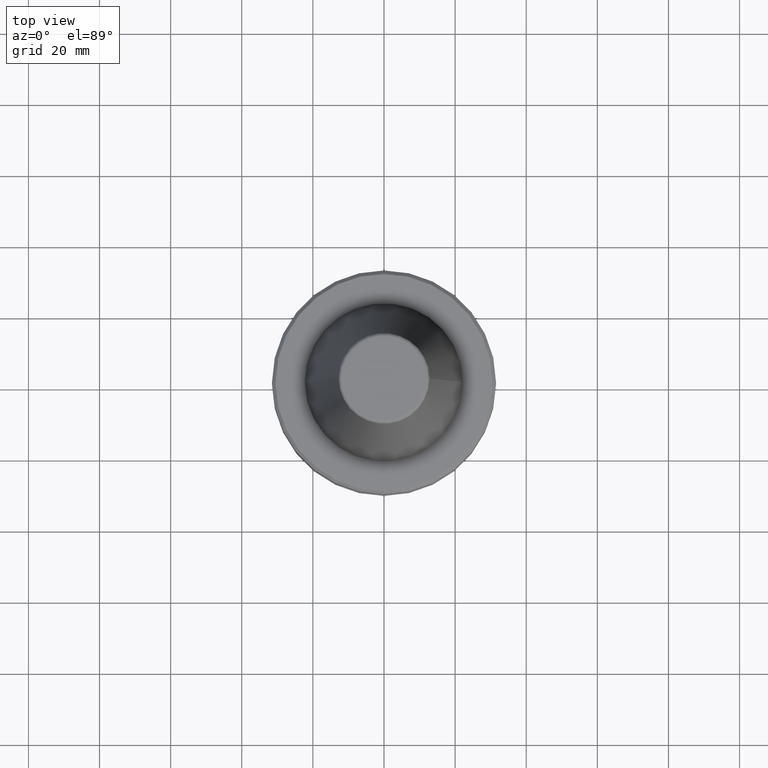
[diagram: clean part render]
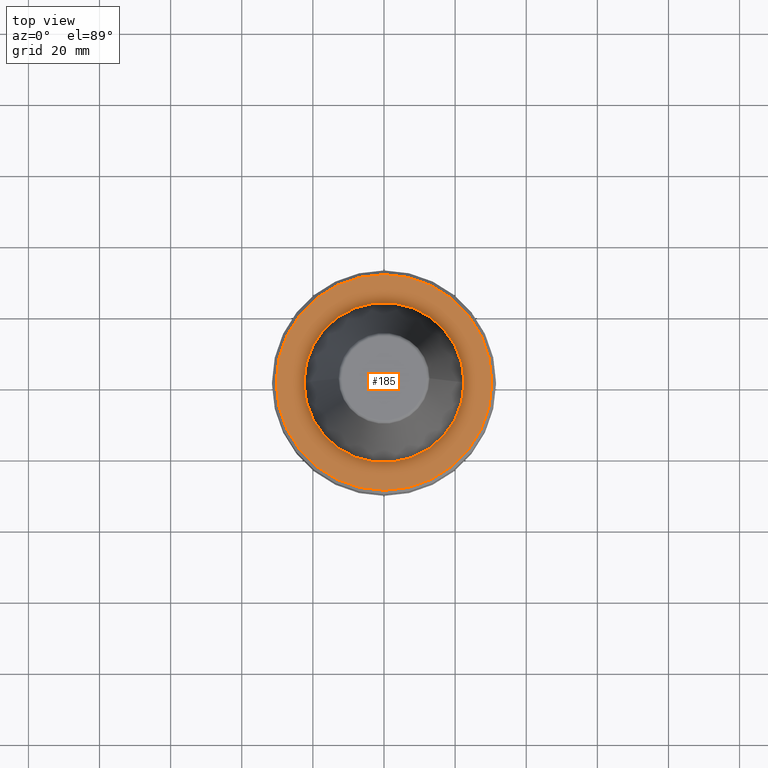
[diagram: same view with one face highlighted and labeled with its STEP entity id]
A machine part, top view. The second image highlights one B-rep face of the part: STEP entity #185.
In plain terms, the highlighted planar face has unit normal (0, -0, 1).
Its self-contained STEP definition (entity closure, byte-faithful):
#3 = CIRCLE ( 'NONE', #635, 22.50000000000000000 ) ;
#27 = ORIENTED_EDGE ( 'NONE', *, *, #52, .T. ) ;
#38 = PLANE ( 'NONE',  #516 ) ;
#42 = FACE_BOUND ( 'NONE', #653, .T. ) ;
#52 = EDGE_CURVE ( 'NONE', #690, #121, #1039, .T. ) ;
#90 = CARTESIAN_POINT ( 'NONE',  ( 0.0000000000000000000, 0.0000000000000000000, -2.000000000000001800 ) ) ;
#121 = VERTEX_POINT ( 'NONE', #725 ) ;
#125 = EDGE_LOOP ( 'NONE', ( #801, #27 ) ) ;
#141 = CARTESIAN_POINT ( 'NONE',  ( 0.0000000000000000000, 0.0000000000000000000, -2.000000000000001800 ) ) ;
#155 = AXIS2_PLACEMENT_3D ( 'NONE', #630, #694, #871 ) ;
#185 = ADVANCED_FACE ( 'NONE', ( #378, #42 ), #38, .T. ) ;
#206 = EDGE_CURVE ( 'NONE', #384, #637, #3, .T. ) ;
#211 = CIRCLE ( 'NONE', #226, 30.33431457505076200 ) ;
#226 = AXIS2_PLACEMENT_3D ( 'NONE', #90, #682, #1261 ) ;
#247 = CARTESIAN_POINT ( 'NONE',  ( -22.50000000000000000, 2.755455298081544800E-015, -2.000000000000001300 ) ) ;
#293 = DIRECTION ( 'NONE',  ( 1.000000000000000000, 0.0000000000000000000, 0.0000000000000000000 ) ) ;
#305 = CARTESIAN_POINT ( 'NONE',  ( -30.33431457505076200, 3.732201245991191800E-015, -2.000000000000001800 ) ) ;
#378 = FACE_OUTER_BOUND ( 'NONE', #125, .T. ) ;
#384 = VERTEX_POINT ( 'NONE', #247 ) ;
#516 = AXIS2_PLACEMENT_3D ( 'NONE', #1129, #1236, #940 ) ;
#557 = CIRCLE ( 'NONE', #155, 22.50000000000000000 ) ;
#564 = AXIS2_PLACEMENT_3D ( 'NONE', #1133, #614, #1033 ) ;
#614 = DIRECTION ( 'NONE',  ( -0.0000000000000000000, -0.0000000000000000000, 1.000000000000000000 ) ) ;
#630 = CARTESIAN_POINT ( 'NONE',  ( 0.0000000000000000000, 0.0000000000000000000, -2.000000000000001800 ) ) ;
#635 = AXIS2_PLACEMENT_3D ( 'NONE', #141, #1242, #293 ) ;
#637 = VERTEX_POINT ( 'NONE', #952 ) ;
#653 = EDGE_LOOP ( 'NONE', ( #1031, #1048 ) ) ;
#682 = DIRECTION ( 'NONE',  ( -0.0000000000000000000, -0.0000000000000000000, 1.000000000000000000 ) ) ;
#690 = VERTEX_POINT ( 'NONE', #305 ) ;
#694 = DIRECTION ( 'NONE',  ( -0.0000000000000000000, -0.0000000000000000000, 1.000000000000000000 ) ) ;
#725 = CARTESIAN_POINT ( 'NONE',  ( 30.33431457505076200, 0.0000000000000000000, -2.000000000000001800 ) ) ;
#801 = ORIENTED_EDGE ( 'NONE', *, *, #1139, .T. ) ;
#871 = DIRECTION ( 'NONE',  ( 1.000000000000000000, 0.0000000000000000000, 0.0000000000000000000 ) ) ;
#940 = DIRECTION ( 'NONE',  ( 1.000000000000000000, 0.0000000000000000000, 0.0000000000000000000 ) ) ;
#947 = EDGE_CURVE ( 'NONE', #637, #384, #557, .T. ) ;
#952 = CARTESIAN_POINT ( 'NONE',  ( 22.50000000000000000, 0.0000000000000000000, -2.000000000000001300 ) ) ;
#1031 = ORIENTED_EDGE ( 'NONE', *, *, #947, .F. ) ;
#1033 = DIRECTION ( 'NONE',  ( 1.000000000000000000, 0.0000000000000000000, 0.0000000000000000000 ) ) ;
#1039 = CIRCLE ( 'NONE', #564, 30.33431457505076200 ) ;
#1048 = ORIENTED_EDGE ( 'NONE', *, *, #206, .F. ) ;
#1129 = CARTESIAN_POINT ( 'NONE',  ( 0.0000000000000000000, 0.0000000000000000000, -2.000000000000002700 ) ) ;
#1133 = CARTESIAN_POINT ( 'NONE',  ( 0.0000000000000000000, 0.0000000000000000000, -2.000000000000001800 ) ) ;
#1139 = EDGE_CURVE ( 'NONE', #121, #690, #211, .T. ) ;
#1236 = DIRECTION ( 'NONE',  ( 0.0000000000000000000, -0.0000000000000000000, 1.000000000000000000 ) ) ;
#1242 = DIRECTION ( 'NONE',  ( -0.0000000000000000000, -0.0000000000000000000, 1.000000000000000000 ) ) ;
#1261 = DIRECTION ( 'NONE',  ( 1.000000000000000000, 0.0000000000000000000, 0.0000000000000000000 ) ) ;